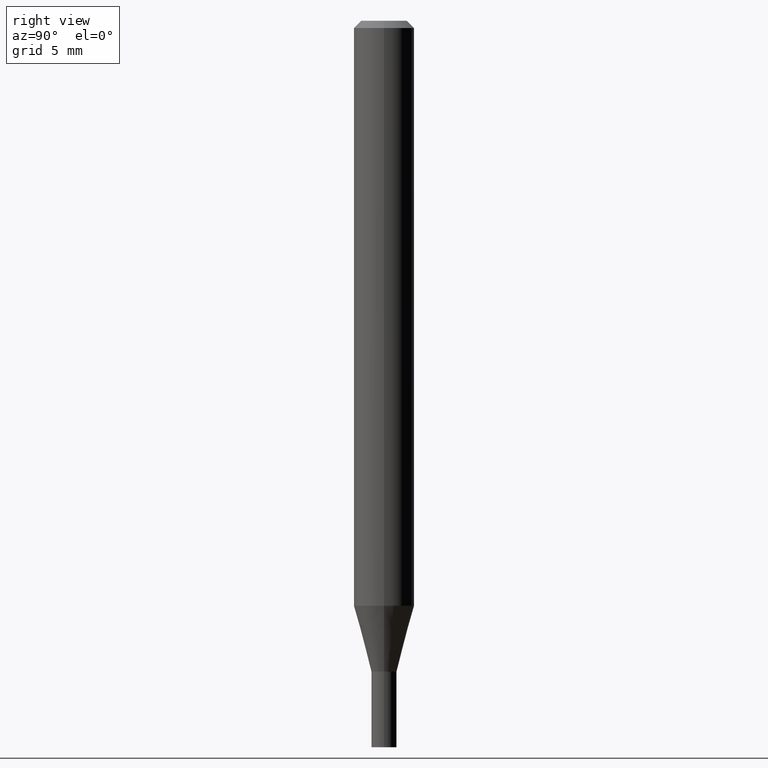
[diagram: clean part render]
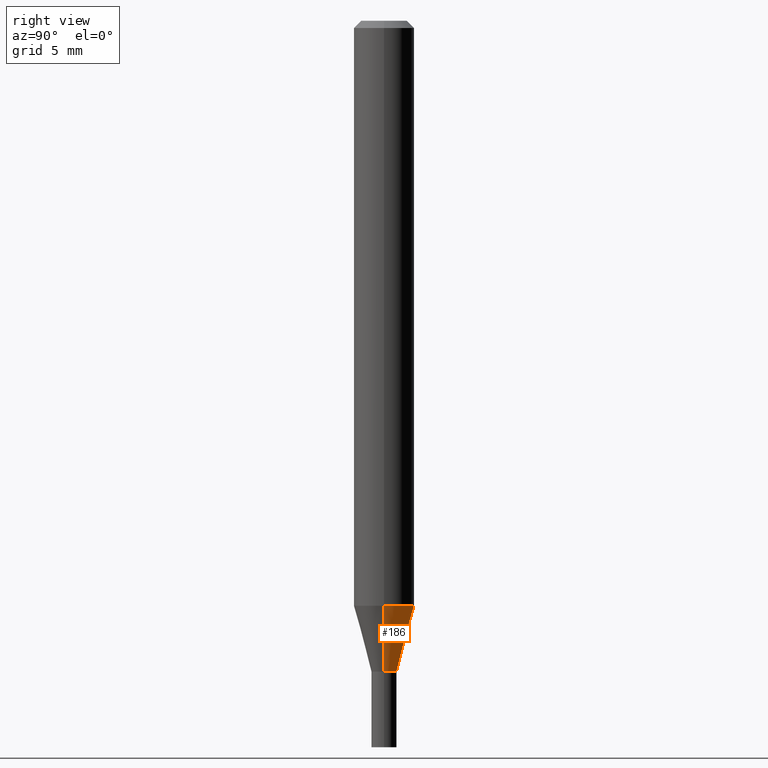
[diagram: same view with one face highlighted and labeled with its STEP entity id]
A machine part, right view. The second image highlights one B-rep face of the part: STEP entity #186.
In plain terms, the highlighted conical surface has half-angle 15 deg.
Its self-contained STEP definition (entity closure, byte-faithful):
#4 = CIRCLE ( 'NONE', #91, 0.06250000000000000000 ) ;
#28 = ORIENTED_EDGE ( 'NONE', *, *, #351, .T. ) ;
#33 = AXIS2_PLACEMENT_3D ( 'NONE', #292, #150, #125 ) ;
#68 = ORIENTED_EDGE ( 'NONE', *, *, #456, .F. ) ;
#76 = CARTESIAN_POINT ( 'NONE',  ( -0.02599999999999964145, -4.140331218889440579E-15, -1.344000000000000306 ) ) ;
#91 = AXIS2_PLACEMENT_3D ( 'NONE', #161, #232, #302 ) ;
#111 = CARTESIAN_POINT ( 'NONE',  ( 3.286710075512824263E-29, -4.692550919405188553E-15, -1.344000000000000306 ) ) ;
#121 = LINE ( 'NONE', #263, #180 ) ;
#123 = DIRECTION ( 'NONE',  ( 1.000000000000000000, -6.982962677686279332E-15, 0.000000000000000000 ) ) ;
#125 = DIRECTION ( 'NONE',  ( 1.000000000000000000, -6.982962677686279332E-15, 0.000000000000000000 ) ) ;
#150 = DIRECTION ( 'NONE',  ( -2.445468806185136597E-29, 3.491481338843145583E-15, 1.000000000000000000 ) ) ;
#161 = CARTESIAN_POINT ( 'NONE',  ( 2.953588670608038575E-29, -4.216941839521379856E-15, -1.207780145523734916 ) ) ;
#180 = VECTOR ( 'NONE', #334, 39.37007874015748143 ) ;
#186 = ADVANCED_FACE ( 'NONE', ( #444 ), #204, .T. ) ;
#204 = CONICAL_SURFACE ( 'NONE', #215, 0.02599999999999964145, 0.2617993877991496854 ) ;
#210 = ORIENTED_EDGE ( 'NONE', *, *, #416, .T. ) ;
#215 = AXIS2_PLACEMENT_3D ( 'NONE', #111, #442, #123 ) ;
#217 = CARTESIAN_POINT ( 'NONE',  ( 0.02599999999999964145, -4.874107949025028868E-15, -1.344000000000000306 ) ) ;
#232 = DIRECTION ( 'NONE',  ( -2.445468806185136597E-29, 3.491481338843145583E-15, 1.000000000000000000 ) ) ;
#243 = VERTEX_POINT ( 'NONE', #217 ) ;
#263 = CARTESIAN_POINT ( 'NONE',  ( -0.02599999999999964145, -4.507809808107564707E-15, -1.344000000000000306 ) ) ;
#271 = LINE ( 'NONE', #297, #296 ) ;
#272 = ORIENTED_EDGE ( 'NONE', *, *, #344, .F. ) ;
#292 = CARTESIAN_POINT ( 'NONE',  ( 3.286710075512824263E-29, -4.692550919405188553E-15, -1.344000000000000306 ) ) ;
#296 = VECTOR ( 'NONE', #331, 39.37007874015748143 ) ;
#297 = CARTESIAN_POINT ( 'NONE',  ( 0.02599999999999964145, -4.874107949025028868E-15, -1.344000000000000306 ) ) ;
#302 = DIRECTION ( 'NONE',  ( 1.000000000000000000, -6.982962677686270655E-15, 0.000000000000000000 ) ) ;
#331 = DIRECTION ( 'NONE',  ( 0.2588190451025210170, 1.565188264969624531E-15, 0.9659258262890682012 ) ) ;
#334 = DIRECTION ( 'NONE',  ( -0.2588190451025210170, 5.211531920934547886E-15, 0.9659258262890682012 ) ) ;
#338 = CIRCLE ( 'NONE', #33, 0.02599999999999964145 ) ;
#343 = VERTEX_POINT ( 'NONE', #377 ) ;
#344 = EDGE_CURVE ( 'NONE', #243, #414, #271, .T. ) ;
#351 = EDGE_CURVE ( 'NONE', #375, #343, #121, .T. ) ;
#375 = VERTEX_POINT ( 'NONE', #76 ) ;
#377 = CARTESIAN_POINT ( 'NONE',  ( -0.06250000000000000000, -3.772852629671316451E-15, -1.207780145523734916 ) ) ;
#404 = CARTESIAN_POINT ( 'NONE',  ( 0.06250000000000000000, -4.653377006876771526E-15, -1.207780145523734916 ) ) ;
#414 = VERTEX_POINT ( 'NONE', #404 ) ;
#416 = EDGE_CURVE ( 'NONE', #243, #375, #338, .T. ) ;
#442 = DIRECTION ( 'NONE',  ( -2.445468806185136597E-29, 3.491481338843145583E-15, 1.000000000000000000 ) ) ;
#444 = FACE_OUTER_BOUND ( 'NONE', #454, .T. ) ;
#454 = EDGE_LOOP ( 'NONE', ( #210, #28, #68, #272 ) ) ;
#456 = EDGE_CURVE ( 'NONE', #414, #343, #4, .T. ) ;